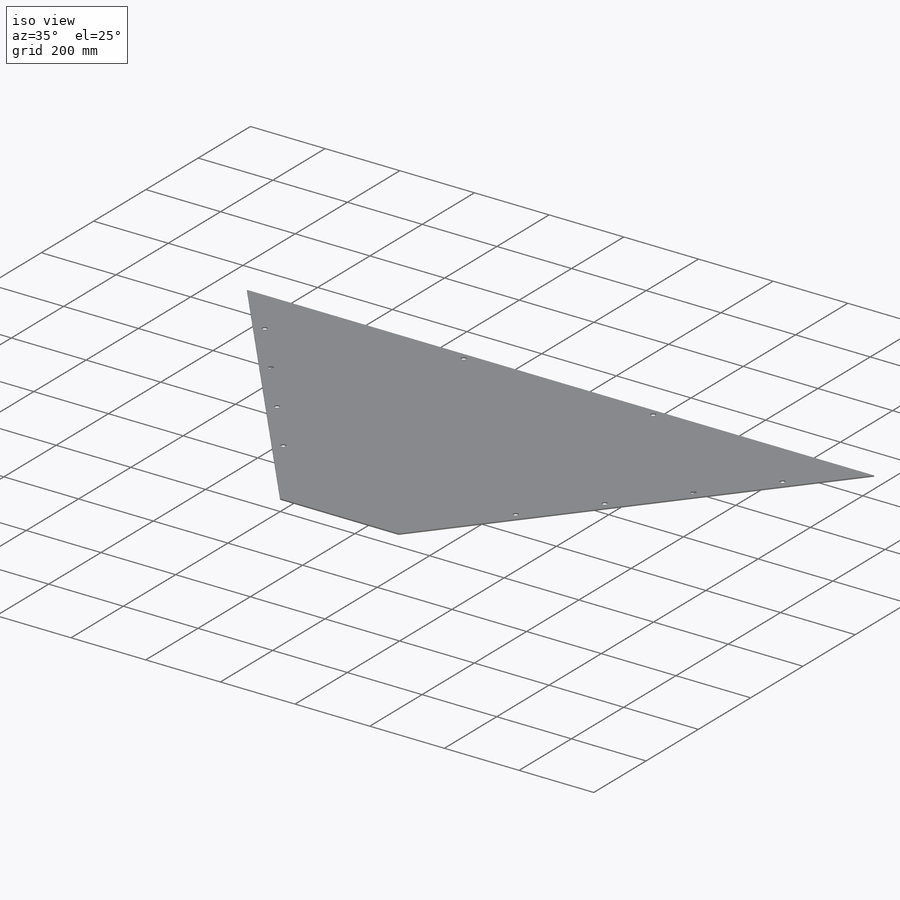
[diagram: iso view]
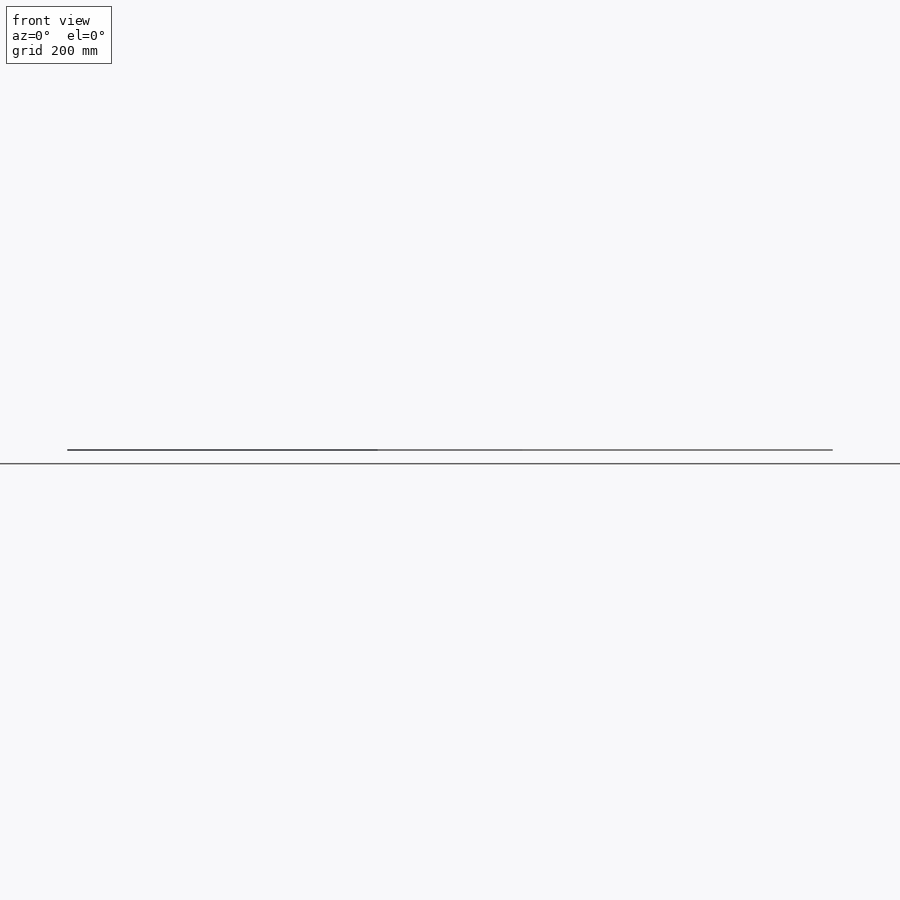
[diagram: front view]
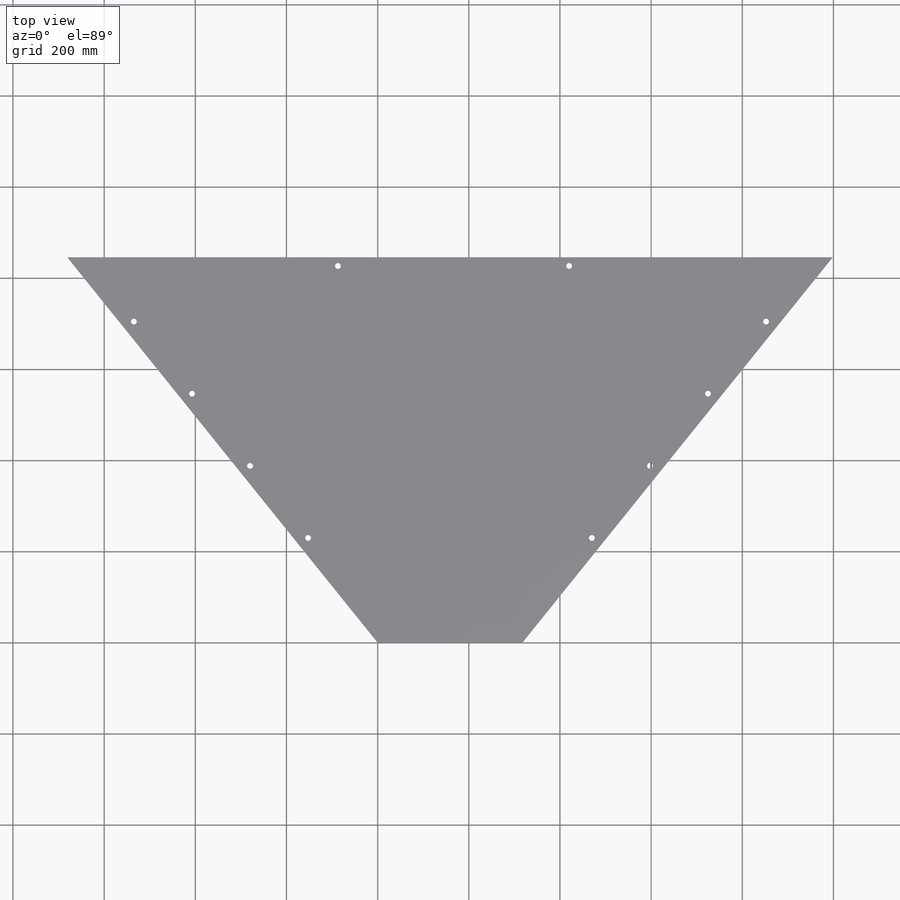
[diagram: top view]
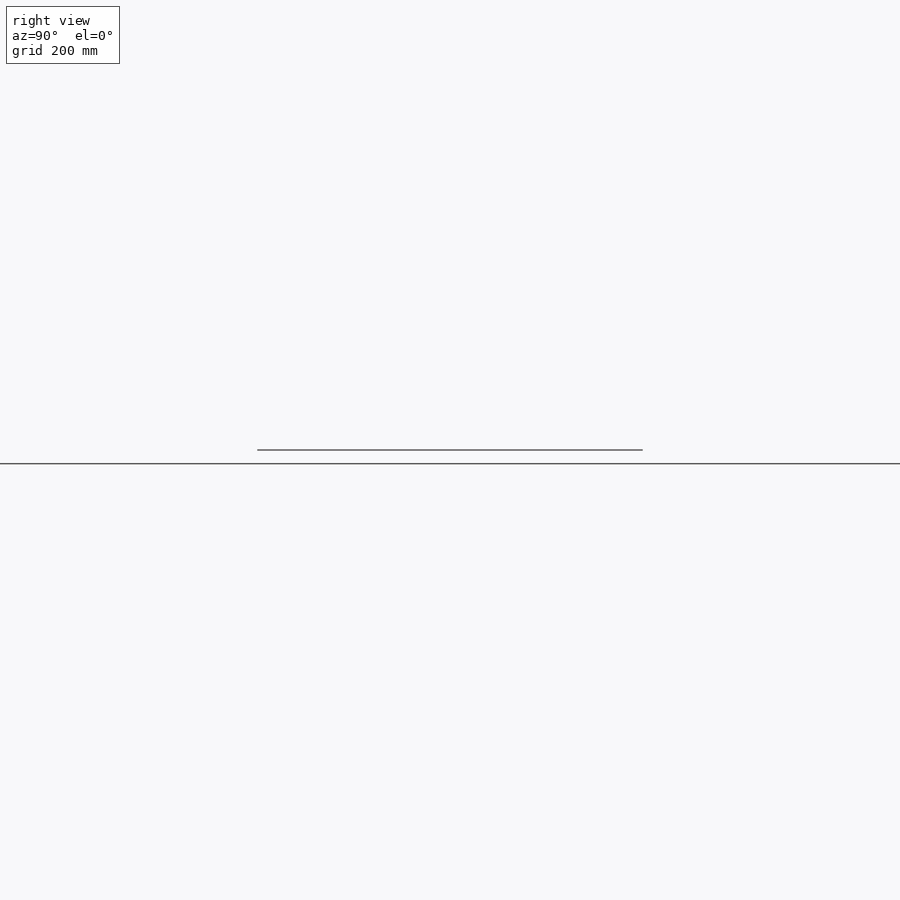
[diagram: right view]
SOLIDWORKS PART (.sldprt)
format: sldprt  version: not decoded by parser v0  size: 181,760 bytes
history: native  units: mm
features: sketch x4, cut_extrude x2, material x1, extrude x1 (+11 scaffold rows collapsed)
feature tree (19):
  scaffold x11  (default folders/planes/origin — collapsed)
  material  "Material <not specified>"
  sketch  "Sketch1"  dims[c1.D1=317.5mm c1.D2=914.4mm c1.D3=193.04mm c1.D4=1524.0mm c2.D3=457.2mm c3.D3=120.0deg c3.D4=1679.575mm c3.D2=1085.85mm c4.D3=1082.675mm]
  extrude  "Boss-Extrude1"  Depth=3.175mm
  sketch  "Sketch2"  dims[c1.D1=~65.506846mm c1.D2=12.7mm c1.D4=50.8mm c2.D1=12.7mm c2.D4=12.7mm c2.D5=12.7mm c3.D1=342.9mm c3.D3=19.05mm c3.D4=317.5mm c4.D1=593.852mm c4.D4=19.05mm c4.D5=578.358mm]
  cut_extrude  "Cut-Extrude1"  [1 undecoded]
  sketch  "Sketch3"  dims[D1=152.4mm]
  sketch  "Sketch4"  dims[c1.D1=12.7mm c1.D2=12.7mm c1.D3=12.7mm c1.D4=12.7mm c1.D5=12.7mm c1.D6=12.7mm c1.D7=12.7mm c1.D8=12.7mm c2.D1=25.4mm c2.D2=203.2mm c2.D3=25.4mm c2.D4=609.6mm c2.D5=25.4mm c2.D6=25.4mm c2.D7=203.2mm c2.D8=203.2mm]
  cut_extrude  "Cut-Extrude2"  [1 undecoded]
decode coverage: 5 of 7 modeling features carry decoded parameters
note: ~ marks probable driven/reference dimensions
note: 2 parameter values undecoded
note: suppression state not decoded; provenance and decode notes live in map.json
